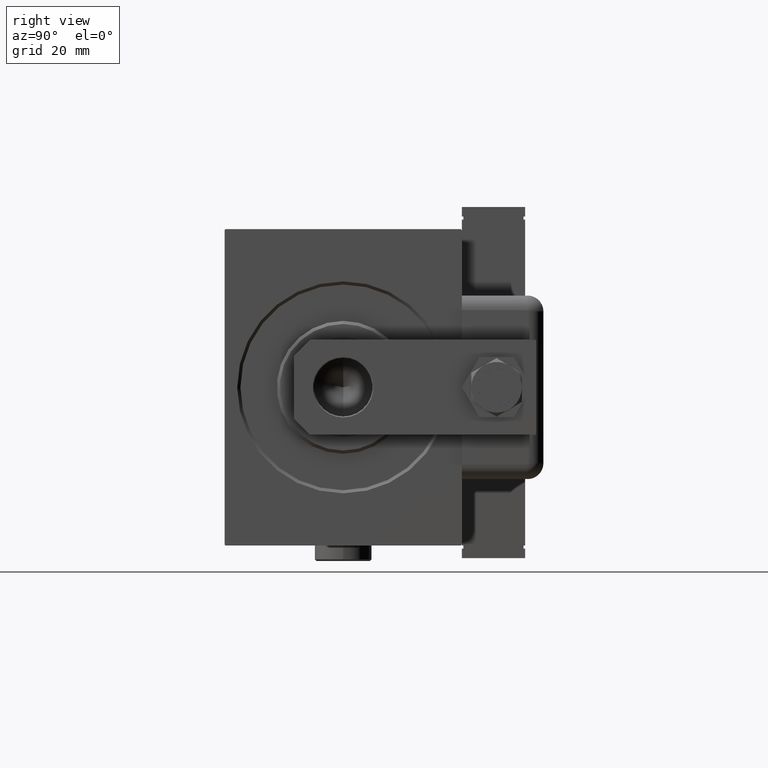
[diagram: clean part render]
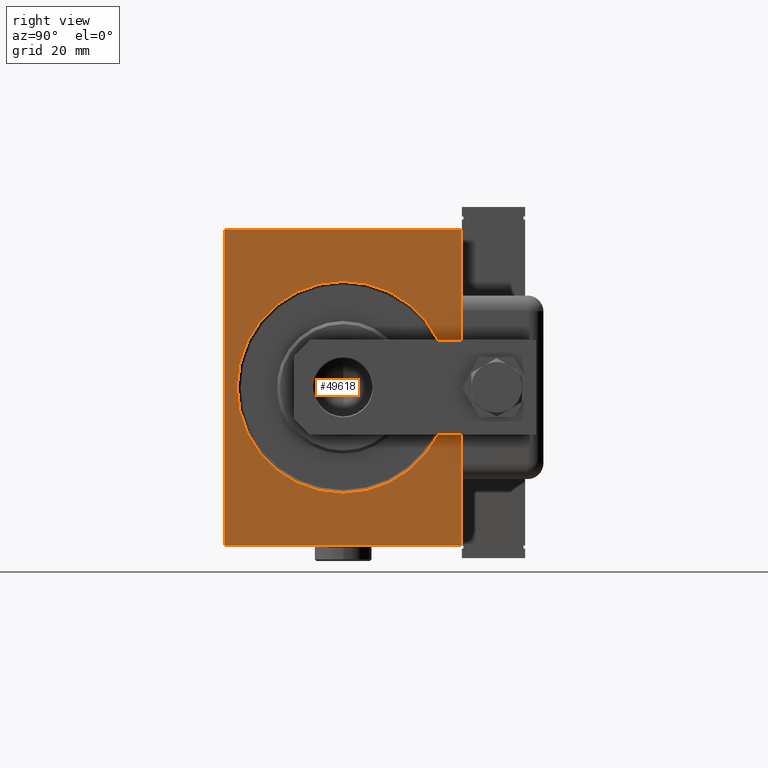
[diagram: same view with one face highlighted and labeled with its STEP entity id]
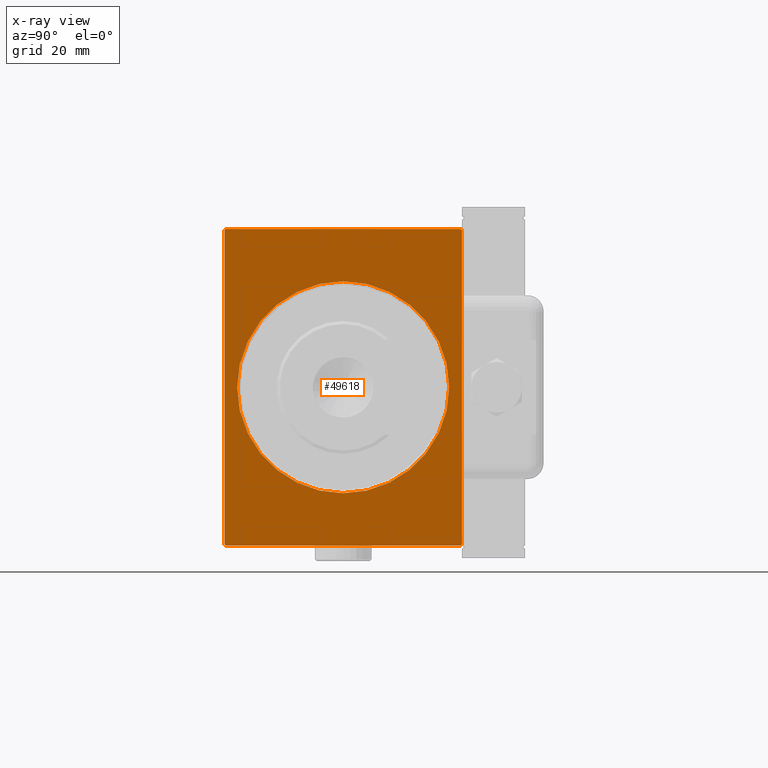
[diagram: x-ray of the same camera — body ghosted, the highlighted face saturated]
A machine part, right view. The second image highlights one B-rep face of the part: STEP entity #49618.
The next image is the same camera in x-ray: the body ghosted, the highlighted face saturated — about 0% of this face is hidden behind the body in this view.
In plain terms, the highlighted planar face has unit normal (-1, 0, 0).
Its self-contained STEP definition (entity closure, byte-faithful):
#33 = AXIS2_PLACEMENT_3D ( 'NONE', #41576, #13897, #38425 ) ;
#2212 = VERTEX_POINT ( 'NONE', #5077 ) ;
#3862 = CARTESIAN_POINT ( 'NONE',  ( 0.000000000000000000, 37.50000000000000711, -49.70000000000003126 ) ) ;
#4135 = LINE ( 'NONE', #41216, #28417 ) ;
#4628 = CARTESIAN_POINT ( 'NONE',  ( 0.000000000000000000, 0.000000000000000000, 0.000000000000000000 ) ) ;
#5077 = CARTESIAN_POINT ( 'NONE',  ( 0.000000000000000000, 4.102566777143632196E-15, -33.49999999999998579 ) ) ;
#5266 = ORIENTED_EDGE ( 'NONE', *, *, #59175, .T. ) ;
#5472 = VECTOR ( 'NONE', #43891, 1000.000000000000000 ) ;
#5962 = LINE ( 'NONE', #39095, #37105 ) ;
#7544 = EDGE_CURVE ( 'NONE', #32459, #19646, #5962, .T. ) ;
#7571 = CARTESIAN_POINT ( 'NONE',  ( 0.000000000000000000, -37.50000000000000000, 50.00000000000000000 ) ) ;
#9427 = LINE ( 'NONE', #23092, #10192 ) ;
#10192 = VECTOR ( 'NONE', #50475, 1000.000000000000114 ) ;
#10224 = DIRECTION ( 'NONE',  ( 0.000000000000000000, 1.000000000000000000, 9.251858538542970348E-17 ) ) ;
#10738 = VECTOR ( 'NONE', #26090, 1000.000000000000000 ) ;
#13113 = DIRECTION ( 'NONE',  ( 1.000000000000000000, 0.000000000000000000, 0.000000000000000000 ) ) ;
#13174 = VECTOR ( 'NONE', #31442, 1000.000000000000000 ) ;
#13897 = DIRECTION ( 'NONE',  ( 1.000000000000000000, 0.000000000000000000, 0.000000000000000000 ) ) ;
#14113 = CARTESIAN_POINT ( 'NONE',  ( 0.000000000000000000, -37.50000000000000000, 49.70000000000000995 ) ) ;
#14150 = VERTEX_POINT ( 'NONE', #27567 ) ;
#16969 = ORIENTED_EDGE ( 'NONE', *, *, #36036, .F. ) ;
#17583 = AXIS2_PLACEMENT_3D ( 'NONE', #48024, #43157, #33729 ) ;
#17783 = ORIENTED_EDGE ( 'NONE', *, *, #34190, .T. ) ;
#19646 = VERTEX_POINT ( 'NONE', #27989 ) ;
#20324 = LINE ( 'NONE', #7571, #10738 ) ;
#21350 = CARTESIAN_POINT ( 'NONE',  ( 0.000000000000000000, 37.50000000000000711, -50.00000000000000711 ) ) ;
#22041 = DIRECTION ( 'NONE',  ( -0.000000000000000000, 0.7071067811865393571, -0.7071067811865556774 ) ) ;
#22395 = EDGE_CURVE ( 'NONE', #24601, #14150, #24123, .T. ) ;
#23011 = FACE_OUTER_BOUND ( 'NONE', #59261, .T. ) ;
#23092 = CARTESIAN_POINT ( 'NONE',  ( 0.000000000000000000, -37.20000000000000284, -50.00000000000001421 ) ) ;
#23135 = DIRECTION ( 'NONE',  ( 0.000000000000000000, 0.000000000000000000, -1.000000000000000000 ) ) ;
#23716 = EDGE_CURVE ( 'NONE', #46392, #19646, #4135, .T. ) ;
#24123 = LINE ( 'NONE', #51212, #24706 ) ;
#24595 = ORIENTED_EDGE ( 'NONE', *, *, #7544, .F. ) ;
#24601 = VERTEX_POINT ( 'NONE', #54511 ) ;
#24706 = VECTOR ( 'NONE', #46967, 1000.000000000000000 ) ;
#24729 = FACE_BOUND ( 'NONE', #27673, .T. ) ;
#25617 = LINE ( 'NONE', #21350, #5472 ) ;
#25846 = ORIENTED_EDGE ( 'NONE', *, *, #51068, .F. ) ;
#26090 = DIRECTION ( 'NONE',  ( 0.000000000000000000, 0.000000000000000000, -1.000000000000000000 ) ) ;
#27144 = VERTEX_POINT ( 'NONE', #47068 ) ;
#27306 = VERTEX_POINT ( 'NONE', #39734 ) ;
#27567 = CARTESIAN_POINT ( 'NONE',  ( 0.000000000000000000, -37.19999999999999574, 50.00000000000000000 ) ) ;
#27673 = EDGE_LOOP ( 'NONE', ( #5266, #54766 ) ) ;
#27989 = CARTESIAN_POINT ( 'NONE',  ( 0.000000000000000000, 37.20000000000001705, -50.00000000000000711 ) ) ;
#28057 = VERTEX_POINT ( 'NONE', #41022 ) ;
#28417 = VECTOR ( 'NONE', #52050, 1000.000000000000000 ) ;
#28870 = CIRCLE ( 'NONE', #36659, 33.49999999999998579 ) ;
#29198 = CIRCLE ( 'NONE', #17583, 33.49999999999998579 ) ;
#31442 = DIRECTION ( 'NONE',  ( -0.000000000000000000, 0.7071067811865556774, 0.7071067811865393571 ) ) ;
#32241 = EDGE_CURVE ( 'NONE', #32459, #28057, #9427, .T. ) ;
#32459 = VERTEX_POINT ( 'NONE', #44055 ) ;
#33729 = DIRECTION ( 'NONE',  ( 0.000000000000000000, 0.000000000000000000, -1.000000000000000000 ) ) ;
#34190 = EDGE_CURVE ( 'NONE', #44651, #14150, #55459, .T. ) ;
#36036 = EDGE_CURVE ( 'NONE', #46392, #27144, #25617, .T. ) ;
#36582 = EDGE_CURVE ( 'NONE', #24601, #27144, #46372, .T. ) ;
#36600 = CARTESIAN_POINT ( 'NONE',  ( 0.000000000000000000, -37.50000000000000000, 49.70000000000000995 ) ) ;
#36659 = AXIS2_PLACEMENT_3D ( 'NONE', #4628, #13113, #23135 ) ;
#37105 = VECTOR ( 'NONE', #10224, 1000.000000000000000 ) ;
#37243 = CARTESIAN_POINT ( 'NONE',  ( 0.000000000000000000, 37.20000000000000995, 50.00000000000001421 ) ) ;
#38089 = ORIENTED_EDGE ( 'NONE', *, *, #22395, .F. ) ;
#38425 = DIRECTION ( 'NONE',  ( 0.000000000000000000, 0.000000000000000000, -1.000000000000000000 ) ) ;
#39095 = CARTESIAN_POINT ( 'NONE',  ( 0.000000000000000000, -37.50000000000000000, -50.00000000000001421 ) ) ;
#39734 = CARTESIAN_POINT ( 'NONE',  ( 0.000000000000000000, 0.000000000000000000, 33.49999999999998579 ) ) ;
#41022 = CARTESIAN_POINT ( 'NONE',  ( 0.000000000000000000, -37.50000000000000000, -49.70000000000002416 ) ) ;
#41216 = CARTESIAN_POINT ( 'NONE',  ( 0.000000000000000000, 37.50000000000000711, -49.70000000000003126 ) ) ;
#41406 = VECTOR ( 'NONE', #22041, 1000.000000000000000 ) ;
#41576 = CARTESIAN_POINT ( 'NONE',  ( 0.000000000000000000, 0.000000000000000000, 0.000000000000000000 ) ) ;
#42563 = EDGE_CURVE ( 'NONE', #2212, #27306, #28870, .T. ) ;
#42956 = ORIENTED_EDGE ( 'NONE', *, *, #32241, .T. ) ;
#43157 = DIRECTION ( 'NONE',  ( 1.000000000000000000, 0.000000000000000000, 0.000000000000000000 ) ) ;
#43891 = DIRECTION ( 'NONE',  ( 0.000000000000000000, -1.387778780781445182E-16, 1.000000000000000000 ) ) ;
#44055 = CARTESIAN_POINT ( 'NONE',  ( 0.000000000000000000, -37.20000000000000284, -50.00000000000001421 ) ) ;
#44516 = ORIENTED_EDGE ( 'NONE', *, *, #36582, .T. ) ;
#44651 = VERTEX_POINT ( 'NONE', #14113 ) ;
#46372 = LINE ( 'NONE', #37243, #41406 ) ;
#46392 = VERTEX_POINT ( 'NONE', #3862 ) ;
#46967 = DIRECTION ( 'NONE',  ( 0.000000000000000000, -1.000000000000000000, -1.850371707708594563E-16 ) ) ;
#47068 = CARTESIAN_POINT ( 'NONE',  ( 0.000000000000000000, 37.49999999999999289, 49.70000000000003126 ) ) ;
#48024 = CARTESIAN_POINT ( 'NONE',  ( 0.000000000000000000, 0.000000000000000000, 0.000000000000000000 ) ) ;
#49618 = ADVANCED_FACE ( 'NONE', ( #24729, #23011 ), #50696, .F. ) ;
#50475 = DIRECTION ( 'NONE',  ( -0.000000000000000000, -0.7071067811865474617, 0.7071067811865474617 ) ) ;
#50696 = PLANE ( 'NONE',  #33 ) ;
#51068 = EDGE_CURVE ( 'NONE', #44651, #28057, #20324, .T. ) ;
#51212 = CARTESIAN_POINT ( 'NONE',  ( 0.000000000000000000, 37.49999999999999289, 50.00000000000001421 ) ) ;
#52050 = DIRECTION ( 'NONE',  ( 0.000000000000000000, -0.7071067811865556774, -0.7071067811865393571 ) ) ;
#54511 = CARTESIAN_POINT ( 'NONE',  ( 0.000000000000000000, 37.20000000000000995, 50.00000000000001421 ) ) ;
#54766 = ORIENTED_EDGE ( 'NONE', *, *, #42563, .T. ) ;
#55371 = ORIENTED_EDGE ( 'NONE', *, *, #23716, .T. ) ;
#55459 = LINE ( 'NONE', #36600, #13174 ) ;
#59175 = EDGE_CURVE ( 'NONE', #27306, #2212, #29198, .T. ) ;
#59261 = EDGE_LOOP ( 'NONE', ( #38089, #44516, #16969, #55371, #24595, #42956, #25846, #17783 ) ) ;